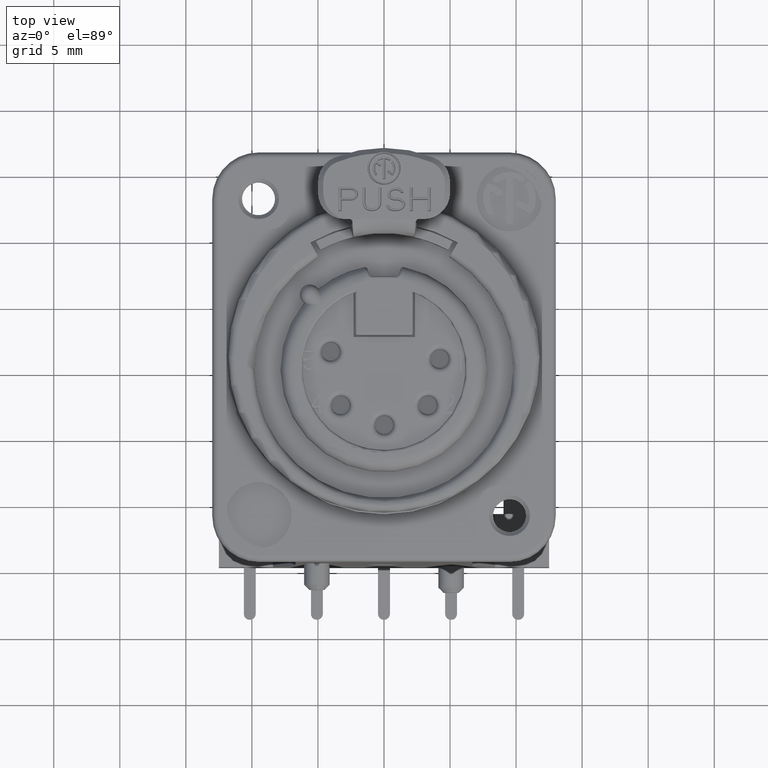
[diagram: clean part render]
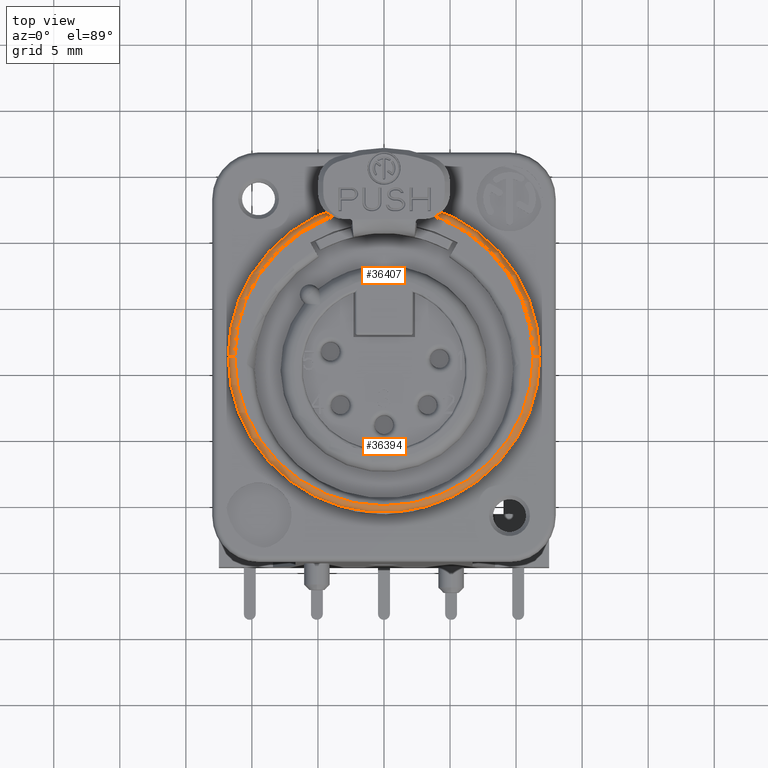
[diagram: same view with one multi-face feature highlighted, each face labeled with its STEP entity id]
A machine part, top view. The highlighted faces form ONE feature: a constant-radius fillet chain: 2 tangent blend faces with common blend radius 0.5 mm. The faces share edges in the B-rep.
Their STEP definitions:
[1] entity #36394 (Torus):
#5008=CARTESIAN_POINT('',(0.E0,9.E-1,4.2E0));
#5009=DIRECTION('',(0.E0,0.E0,1.E0));
#5010=DIRECTION('',(-1.E0,0.E0,0.E0));
#5011=AXIS2_PLACEMENT_3D('',#5008,#5009,#5010);
#8608=CARTESIAN_POINT('',(0.E0,9.E-1,4.7E0));
#8609=DIRECTION('',(0.E0,0.E0,1.E0));
#8610=DIRECTION('',(-1.E0,0.E0,0.E0));
#8611=AXIS2_PLACEMENT_3D('',#8608,#8609,#8610);
#8618=CARTESIAN_POINT('',(0.E0,9.E-1,4.7E0));
#8619=DIRECTION('',(0.E0,0.E0,1.E0));
#8620=DIRECTION('',(-3.925316633132E-5,-9.999999992296E-1,0.E0));
#8621=AXIS2_PLACEMENT_3D('',#8618,#8619,#8620);
#8636=CARTESIAN_POINT('',(-1.13E1,9.E-1,4.2E0));
#8637=DIRECTION('',(0.E0,-1.E0,0.E0));
#8638=DIRECTION('',(0.E0,0.E0,1.E0));
#8639=AXIS2_PLACEMENT_3D('',#8636,#8637,#8638);
#8641=CARTESIAN_POINT('',(1.13E1,9.E-1,4.2E0));
#8642=DIRECTION('',(0.E0,1.E0,0.E0));
#8643=DIRECTION('',(0.E0,0.E0,1.E0));
#8644=AXIS2_PLACEMENT_3D('',#8641,#8642,#8643);
#19379=CARTESIAN_POINT('',(-1.18E1,9.E-1,4.2E0));
#19380=CARTESIAN_POINT('',(1.18E1,9.E-1,4.2E0));
#19381=VERTEX_POINT('',#19379);
#19382=VERTEX_POINT('',#19380);
#19383=CARTESIAN_POINT('',(1.129999919850E1,9.E-1,4.699999999999E0));
#19384=CARTESIAN_POINT('',(-1.129999919850E1,9.E-1,4.699999999999E0));
#19385=VERTEX_POINT('',#19383);
#19386=VERTEX_POINT('',#19384);
#19392=CARTESIAN_POINT('',(-4.434339231247E-4,-1.039690456837E1,4.7E0));
#19394=VERTEX_POINT('',#19392);
#36380=CARTESIAN_POINT('',(0.E0,9.E-1,4.2E0));
#36381=DIRECTION('',(0.E0,0.E0,1.E0));
#36382=DIRECTION('',(-9.999437199312E-1,1.060928698071E-2,0.E0));
#36383=AXIS2_PLACEMENT_3D('',#36380,#36381,#36382);
#36384=TOROIDAL_SURFACE('',#36383,1.13E1,5.E-1);
#36385=ORIENTED_EDGE('',*,*,#36367,.T.);
#36386=ORIENTED_EDGE('',*,*,#36371,.T.);
#36388=ORIENTED_EDGE('',*,*,#36387,.T.);
#36389=ORIENTED_EDGE('',*,*,#30918,.F.);
#36391=ORIENTED_EDGE('',*,*,#36390,.F.);
#36392=EDGE_LOOP('',(#36385,#36386,#36388,#36389,#36391));
#36393=FACE_OUTER_BOUND('',#36392,.F.);
#36394=ADVANCED_FACE('',(#36393),#36384,.T.);
#5012=CIRCLE('',#5011,1.18E1);
#8612=CIRCLE('',#8611,1.13E1);
#8622=CIRCLE('',#8621,1.13E1);
#8640=CIRCLE('',#8639,5.E-1);
#8645=CIRCLE('',#8644,5.E-1);
#30918=EDGE_CURVE('',#19381,#19382,#5012,.T.);
#36367=EDGE_CURVE('',#19386,#19394,#8612,.T.);
#36371=EDGE_CURVE('',#19394,#19385,#8622,.T.);
#36387=EDGE_CURVE('',#19385,#19382,#8645,.T.);
#36390=EDGE_CURVE('',#19386,#19381,#8640,.T.);
[2] entity #36407 (Torus):
#8613=CARTESIAN_POINT('',(0.E0,9.E-1,4.699999999999E0));
#8614=DIRECTION('',(0.E0,0.E0,1.E0));
#8615=DIRECTION('',(1.E0,0.E0,0.E0));
#8616=AXIS2_PLACEMENT_3D('',#8613,#8614,#8615);
#8636=CARTESIAN_POINT('',(-1.13E1,9.E-1,4.2E0));
#8637=DIRECTION('',(0.E0,-1.E0,0.E0));
#8638=DIRECTION('',(0.E0,0.E0,1.E0));
#8639=AXIS2_PLACEMENT_3D('',#8636,#8637,#8638);
#8641=CARTESIAN_POINT('',(1.13E1,9.E-1,4.2E0));
#8642=DIRECTION('',(0.E0,1.E0,0.E0));
#8643=DIRECTION('',(0.E0,0.E0,1.E0));
#8644=AXIS2_PLACEMENT_3D('',#8641,#8642,#8643);
#8651=CARTESIAN_POINT('',(0.E0,9.E-1,4.2E0));
#8652=DIRECTION('',(0.E0,0.E0,1.E0));
#8653=DIRECTION('',(1.E0,0.E0,0.E0));
#8654=AXIS2_PLACEMENT_3D('',#8651,#8652,#8653);
#19379=CARTESIAN_POINT('',(-1.18E1,9.E-1,4.2E0));
#19380=CARTESIAN_POINT('',(1.18E1,9.E-1,4.2E0));
#19381=VERTEX_POINT('',#19379);
#19382=VERTEX_POINT('',#19380);
#19383=CARTESIAN_POINT('',(1.129999919850E1,9.E-1,4.699999999999E0));
#19384=CARTESIAN_POINT('',(-1.129999919850E1,9.E-1,4.699999999999E0));
#19385=VERTEX_POINT('',#19383);
#19386=VERTEX_POINT('',#19384);
#36395=CARTESIAN_POINT('',(0.E0,9.E-1,4.2E0));
#36396=DIRECTION('',(0.E0,0.E0,1.E0));
#36397=DIRECTION('',(9.999437199312E-1,-1.060928698071E-2,0.E0));
#36398=AXIS2_PLACEMENT_3D('',#36395,#36396,#36397);
#36399=TOROIDAL_SURFACE('',#36398,1.13E1,5.E-1);
#36400=ORIENTED_EDGE('',*,*,#36369,.T.);
#36401=ORIENTED_EDGE('',*,*,#36390,.T.);
#36403=ORIENTED_EDGE('',*,*,#36402,.F.);
#36404=ORIENTED_EDGE('',*,*,#36387,.F.);
#36405=EDGE_LOOP('',(#36400,#36401,#36403,#36404));
#36406=FACE_OUTER_BOUND('',#36405,.F.);
#36407=ADVANCED_FACE('',(#36406),#36399,.T.);
#8617=CIRCLE('',#8616,1.129999919850E1);
#8640=CIRCLE('',#8639,5.E-1);
#8645=CIRCLE('',#8644,5.E-1);
#8655=CIRCLE('',#8654,1.18E1);
#36369=EDGE_CURVE('',#19385,#19386,#8617,.T.);
#36387=EDGE_CURVE('',#19385,#19382,#8645,.T.);
#36390=EDGE_CURVE('',#19386,#19381,#8640,.T.);
#36402=EDGE_CURVE('',#19382,#19381,#8655,.T.);